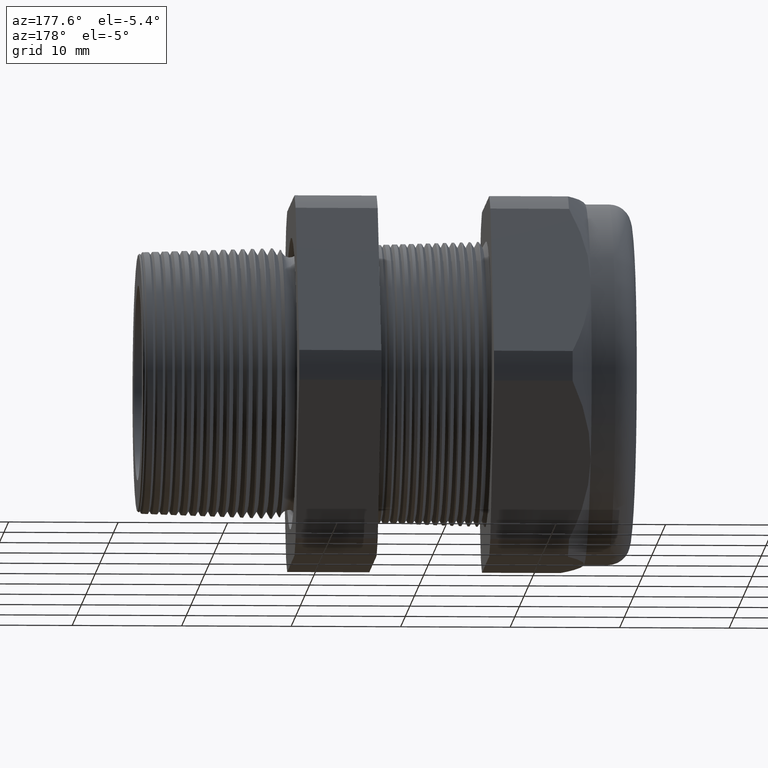
[diagram: clean part render]
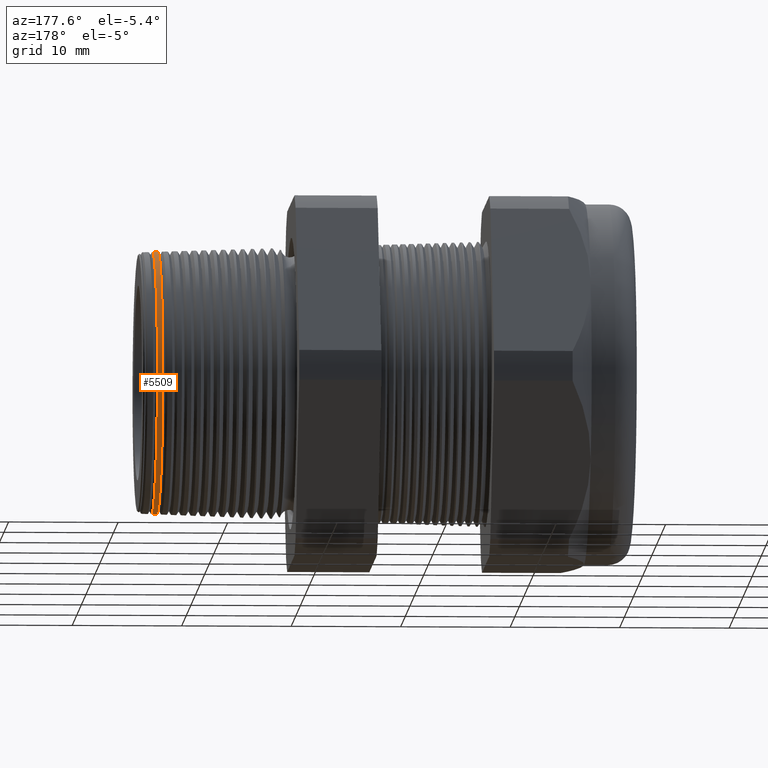
[diagram: same view with one face highlighted and labeled with its STEP entity id]
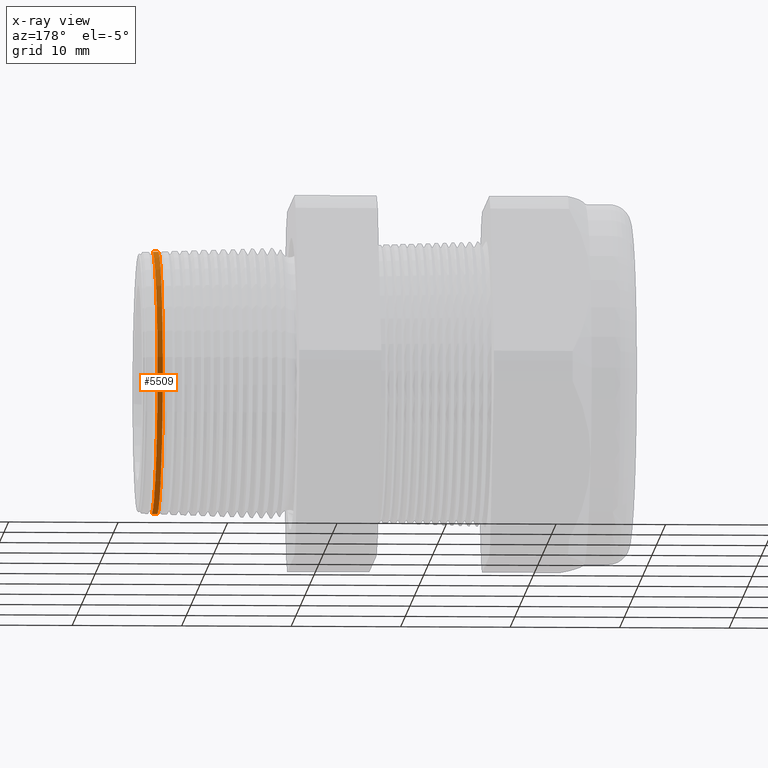
[diagram: x-ray of the same camera — body ghosted, the highlighted face saturated]
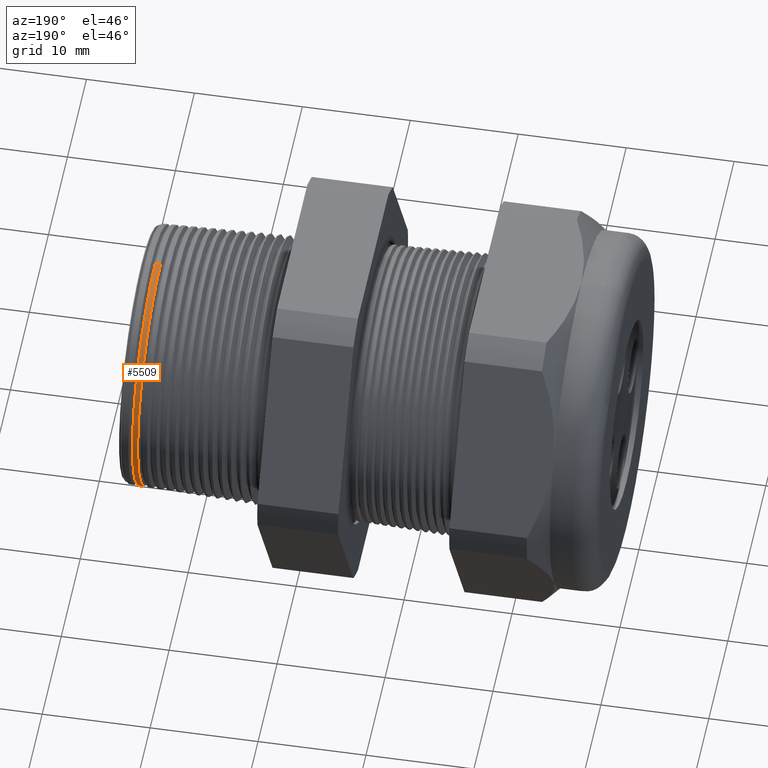
[diagram: same view with one face highlighted and labeled with its STEP entity id]
A machine part, auxiliary view. The second image highlights one B-rep face of the part: STEP entity #5509.
The next image is the same camera in x-ray: the body ghosted, the highlighted face saturated — about 0% of this face is hidden behind the body in this view.
A second angle (auxiliary view) of the same face is appended — the face is thin or edge-on in the first view.
In plain terms, the highlighted conical surface has half-angle 2 deg.
Its self-contained STEP definition (entity closure, byte-faithful):
#327 = ORIENTED_EDGE ( 'NONE', *, *, #5519, .F. ) ;
#329 = ORIENTED_EDGE ( 'NONE', *, *, #592, .F. ) ;
#332 = ORIENTED_EDGE ( 'NONE', *, *, #334, .T. ) ;
#334 = EDGE_CURVE ( 'NONE', #1174, #589, #2037, .T. ) ;
#335 = ORIENTED_EDGE ( 'NONE', *, *, #1107, .F. ) ;
#522 = VERTEX_POINT ( 'NONE', #2385 ) ;
#589 = VERTEX_POINT ( 'NONE', #2504 ) ;
#592 = EDGE_CURVE ( 'NONE', #522, #589, #2503, .T. ) ;
#1107 = EDGE_CURVE ( 'NONE', #1174, #1108, #3197, .T. ) ;
#1108 = VERTEX_POINT ( 'NONE', #3192 ) ;
#1174 = VERTEX_POINT ( 'NONE', #3344 ) ;
#2034 = DIRECTION ( 'NONE',  ( -0.9993908270190959800, 4.273955692856263600E-018, -0.03489949670249379400 ) ) ;
#2035 = VECTOR ( 'NONE', #2034, 39.37007874015748100 ) ;
#2036 = CARTESIAN_POINT ( 'NONE',  ( 0.2400000000000001000, 5.772226213505909400E-017, -0.4713380394677679800 ) ) ;
#2037 = LINE ( 'NONE', #2036, #2035 ) ;
#2385 = CARTESIAN_POINT ( 'NONE',  ( 0.1699034186660586300, 0.0000000000000000000, 0.4737858660266895900 ) ) ;
#2499 = DIRECTION ( 'NONE',  ( 0.0000000000000000000, 0.0000000000000000000, -1.000000000000000000 ) ) ;
#2500 = DIRECTION ( 'NONE',  ( -1.000000000000000000, 0.0000000000000000000, 0.0000000000000000000 ) ) ;
#2501 = CARTESIAN_POINT ( 'NONE',  ( 0.1699034186660586300, 0.0000000000000000000, 0.0000000000000000000 ) ) ;
#2502 = AXIS2_PLACEMENT_3D ( 'NONE', #2501, #2500, #2499 ) ;
#2503 = CIRCLE ( 'NONE', #2502, 0.4737858660266895900 ) ;
#2504 = CARTESIAN_POINT ( 'NONE',  ( 0.1699034186660586300, 5.802203443108420900E-017, -0.4737858660266895900 ) ) ;
#3192 = CARTESIAN_POINT ( 'NONE',  ( 0.1892703024426582200, 0.0000000000000000000, 0.4731095595425537400 ) ) ;
#3193 = DIRECTION ( 'NONE',  ( 0.0000000000000000000, 0.0000000000000000000, 1.000000000000000000 ) ) ;
#3194 = DIRECTION ( 'NONE',  ( 1.000000000000000000, 0.0000000000000000000, 0.0000000000000000000 ) ) ;
#3195 = CARTESIAN_POINT ( 'NONE',  ( 0.1892703024426582200, 0.0000000000000000000, 0.0000000000000000000 ) ) ;
#3196 = AXIS2_PLACEMENT_3D ( 'NONE', #3195, #3194, #3193 ) ;
#3197 = CIRCLE ( 'NONE', #3196, 0.4731095595425537400 ) ;
#3344 = CARTESIAN_POINT ( 'NONE',  ( 0.1892703024426582200, 5.798062260253223900E-017, -0.4731095595425537900 ) ) ;
#3792 = DIRECTION ( 'NONE',  ( 0.0000000000000000000, 0.0000000000000000000, 1.000000000000000000 ) ) ;
#3793 = DIRECTION ( 'NONE',  ( -1.000000000000000000, 0.0000000000000000000, 0.0000000000000000000 ) ) ;
#3794 = CARTESIAN_POINT ( 'NONE',  ( 0.2400000000000001000, 0.0000000000000000000, 0.0000000000000000000 ) ) ;
#3795 = AXIS2_PLACEMENT_3D ( 'NONE', #3794, #3793, #3792 ) ;
#3797 = CONICAL_SURFACE ( 'NONE', #3795, 0.4713380394677679800, 0.03490658503987940900 ) ;
#3798 = FACE_OUTER_BOUND ( 'NONE', #5510, .T. ) ;
#3831 = DIRECTION ( 'NONE',  ( -0.9993908270190959800, 0.0000000000000000000, 0.03489949670249379400 ) ) ;
#3832 = VECTOR ( 'NONE', #3831, 39.37007874015748100 ) ;
#3833 = CARTESIAN_POINT ( 'NONE',  ( 0.2400000000000001000, 0.0000000000000000000, 0.4713380394677679800 ) ) ;
#3834 = LINE ( 'NONE', #3833, #3832 ) ;
#5509 = ADVANCED_FACE ( 'NONE', ( #3798 ), #3797, .T. ) ;
#5510 = EDGE_LOOP ( 'NONE', ( #335, #332, #329, #327 ) ) ;
#5519 = EDGE_CURVE ( 'NONE', #1108, #522, #3834, .T. ) ;